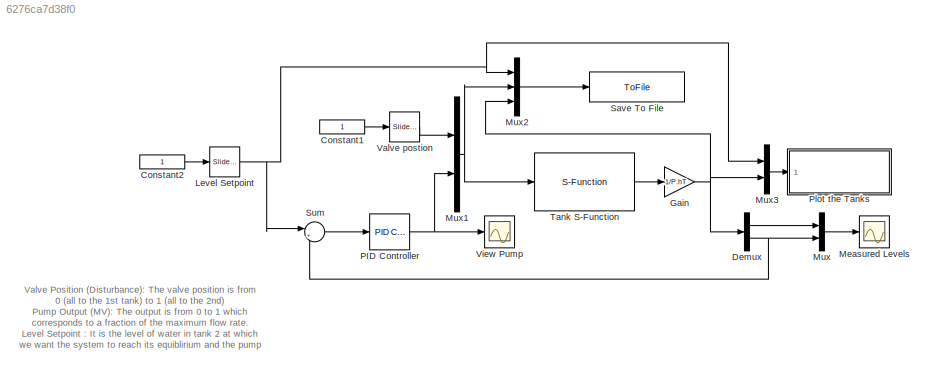
MODEL slx_6276ca7d38f0
KIND model
CONFIG AbsTol = auto
CONFIG EnableMultiTasking = on
CONFIG FixedStep = auto
CONFIG MaxStep = auto
CONFIG MinStep = auto
CONFIG PreLoadFcn = Initialize
CONFIG RelTol = 1e-3
CONFIG SampleTimeConstraint = Unconstrained
CONFIG SolverName = ode45
CONFIG StartTime = 0.0
CONFIG StopFcn = Plot_and_save
CONFIG StopTime = 500
BLOCK [Constant] Constant1
BLOCK [Constant] Constant2
BLOCK [Demux] Demux
  Outputs = 2
  Ports = [1, 2]
BLOCK [Gain] Gain
  Gain = 1/P.hT
BLOCK [Reference] Level Setpoint  REF=simulink/Math
Operations/Slider
Gain
  Ports = [1, 1]
  SourceBlock = simulink/Math\nOperations/Slider\nGain
  SourceProductBaseCode = SL
  SourceType = Slider Gain
BLOCK [Scope] Measured Levels
  Floating = off
  NumInputPorts = 1
  Ports = [1]
  ScopeSpecificationString = Simulink.scopes.TimeScopeBlockCfg('CurrentConfiguration', extmgr.ConfigurationSet(extmgr.Configuration('Core','General UI',true),extmgr.Configuration('Core','Source UI',true),extmgr.Configuration('Sources','WiredSimulink',true,'DataLoggingVariableName','ScopeData1','DataLoggingSaveFormat','StructureWithTime','DataLoggingLimitDataPoints',true,'DataLoggingDecimation','1','DataLoggingDecimateData',tr...<+1740ch>
BLOCK [Mux] Mux
  DisplayOption = bar
  Inputs = 2
  Ports = [2, 1]
BLOCK [Mux] Mux1
  DisplayOption = bar
  Inputs = 2
  Ports = [2, 1]
BLOCK [Mux] Mux2
  DisplayOption = bar
  Inputs = 3
  Ports = [3, 1]
BLOCK [Mux] Mux3
  DisplayOption = bar
  Inputs = 2
  Ports = [2, 1]
BLOCK [Reference] PID Controller  REF=pid_lib/PID Controller
  Ports = [1, 1]
  SourceBlock = pid_lib/PID Controller
  SourceProductBaseCode = SL
  SourceType = PID 1dof
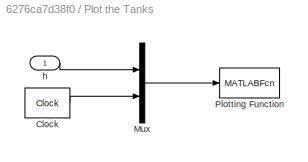
BLOCK [SubSystem] Plot the Tanks
  Ports = [1]
  RequestExecContextInheritance = off
BLOCK [Clock] Plot the Tanks/Clock
  DisplayTime = on
BLOCK [Mux] Plot the Tanks/Mux
  DisplayOption = bar
  Inputs = 2
  Ports = [2, 1]
BLOCK [MATLABFcn] Plot the Tanks/Plotting Function
  MATLABFcn = PlotTanks(u)
  OutputDimensions = 0
  Ports = [1]
  SampleTime = .05
BLOCK [Inport] Plot the Tanks/h
BLOCK [ToFile] Save To File
  Filename = data_manual.mat
  MatrixName = tanks
  Ports = [1]
  SampleTime = 1
BLOCK [Sum] Sum
  Inputs = |+-
  Ports = [2, 1]
BLOCK [S-Function] Tank S-Function
  EnableBusSupport = off
  FunctionName = tank_dynamics
  Parameters = P
  Ports = [1, 1]
  SFcnIsStateOwnerBlock = off
  SFunctionDeploymentMode = off
BLOCK [Reference] Valve postion  REF=simulink/Math
Operations/Slider
Gain
  Ports = [1, 1]
  SourceBlock = simulink/Math\nOperations/Slider\nGain
  SourceProductBaseCode = SL
  SourceType = Slider Gain
BLOCK [Scope] View Pump
  Floating = off
  NumInputPorts = 1
  Ports = [1]
  ScopeSpecificationString = Simulink.scopes.TimeScopeBlockCfg('CurrentConfiguration', extmgr.ConfigurationSet(extmgr.Configuration('Core','General UI',true),extmgr.Configuration('Core','Source UI',true),extmgr.Configuration('Sources','WiredSimulink',true,'DataLoggingSaveFormat','StructureWithTime','DataLoggingLimitDataPoints',true,'DataLoggingDecimation','1','DataLoggingDecimateData',true),extmgr.Configuration('Visuals','Tim...<+1690ch>
ANNOTATION (root): Valve Position (Disturbance): The valve position is from 0 (all to the 1st tank) to 1 (all to the 2nd) Pump Output (MV): The output is from 0 to 1 which corresponds to a fraction of the maximum flow rate. Level Setpoint : It is the level of water in tank 2 at which we want the system to reach its equiblirium and the pump flow to become a constant. Change blue box values (slider).
LINE Constant1:1 -> Valve postion:1
LINE Constant2:1 -> Level Setpoint:1
LINE Demux:1 -> Mux:1
NET Demux:2 -> Mux:2, Sum:2
NET Gain:1 -> Demux:1, Mux2:3, Mux3:2
NET Level Setpoint:1 -> Mux2:1, Mux3:1, Sum:1
NET Mux1:1 -> Mux2:2, Tank S-Function:1
LINE Mux2:1 -> Save To File:1
LINE Mux3:1 -> Plot the Tanks:1
LINE Mux:1 -> Measured Levels:1
NET PID Controller:1 -> Mux1:2, View Pump:1
LINE Plot the Tanks/Clock:1 -> Plot the Tanks/Mux:2
LINE Plot the Tanks/Mux:1 -> Plot the Tanks/Plotting Function:1
LINE Plot the Tanks/h:1 -> Plot the Tanks/Mux:1
LINE Sum:1 -> PID Controller:1
LINE Tank S-Function:1 -> Gain:1
LINE Valve postion:1 -> Mux1:1
note: NET lines group one-source signal fan-out (src -> all destinations, sorted); 1:1 wires keep LINE
